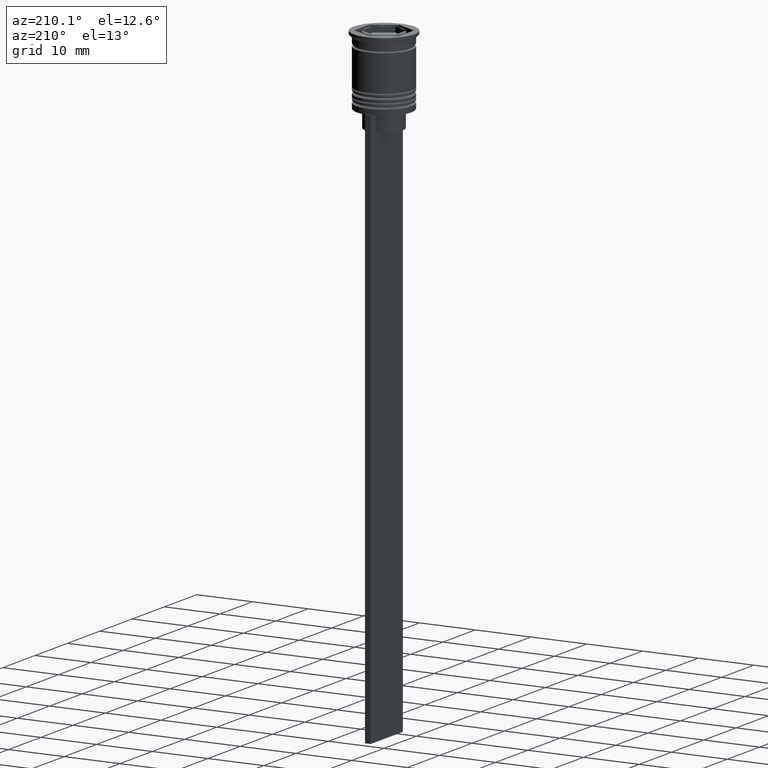
[diagram: clean part render]
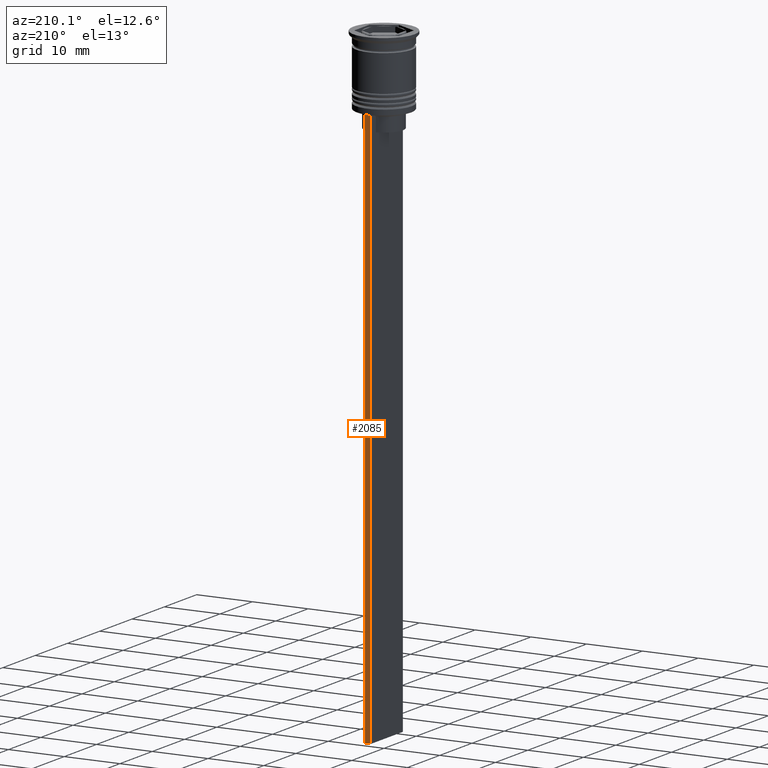
[diagram: same view with one face highlighted and labeled with its STEP entity id]
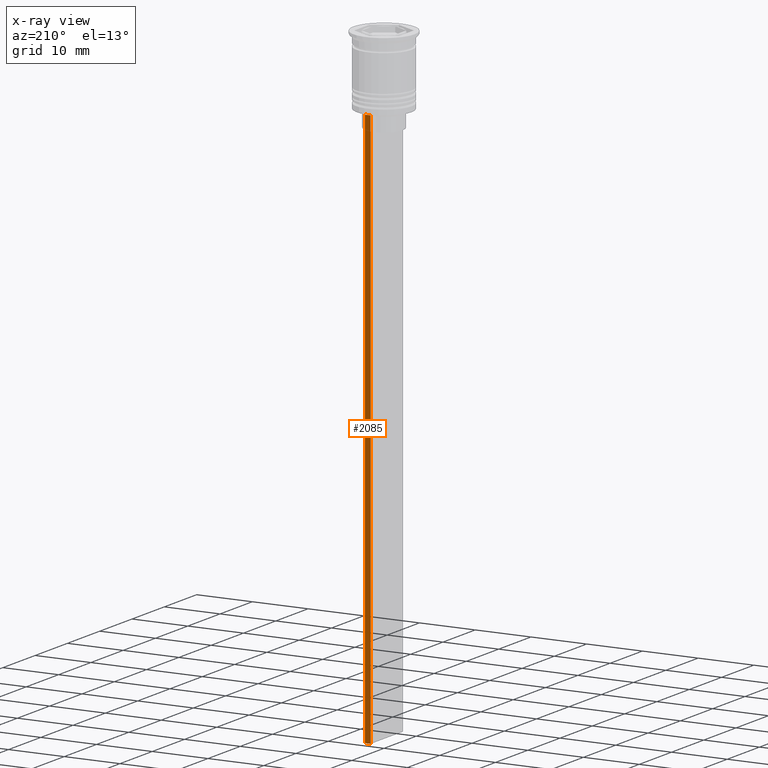
[diagram: x-ray of the same camera — body ghosted, the highlighted face saturated]
A machine part, auxiliary view. The second image highlights one B-rep face of the part: STEP entity #2085.
The next image is the same camera in x-ray: the body ghosted, the highlighted face saturated — about 0% of this face is hidden behind the body in this view.
In plain terms, the highlighted planar face has unit normal (0, -1, -0).
Its self-contained STEP definition (entity closure, byte-faithful):
#122 = CARTESIAN_POINT ( 'NONE',  ( -0.5000000000000000000, 5.000000000000000888, -2.450124378879110054 ) ) ;
#198 = VECTOR ( 'NONE', #2334, 1000.000000000000000 ) ;
#245 = ORIENTED_EDGE ( 'NONE', *, *, #617, .T. ) ;
#392 = VECTOR ( 'NONE', #1901, 1000.000000000000000 ) ;
#517 = DIRECTION ( 'NONE',  ( 0.000000000000000000, -1.000000000000000000, -0.000000000000000000 ) ) ;
#617 = EDGE_CURVE ( 'NONE', #1435, #2125, #2478, .T. ) ;
#720 = CARTESIAN_POINT ( 'NONE',  ( -0.5000000000000000000, 5.000000000000000888, -112.5000000000000000 ) ) ;
#732 = CARTESIAN_POINT ( 'NONE',  ( 0.5000000000000000000, 5.000000000000000888, -112.5000000000000000 ) ) ;
#771 = VERTEX_POINT ( 'NONE', #999 ) ;
#917 = FACE_OUTER_BOUND ( 'NONE', #1704, .T. ) ;
#942 = LINE ( 'NONE', #1748, #943 ) ;
#943 = VECTOR ( 'NONE', #2546, 1000.000000000000000 ) ;
#999 = CARTESIAN_POINT ( 'NONE',  ( 0.5000000000000000000, 5.000000000000000888, -112.5000000000000000 ) ) ;
#1108 = CARTESIAN_POINT ( 'NONE',  ( 0.5000000000000000000, 5.000000000000000888, -12.50000000000000000 ) ) ;
#1115 = DIRECTION ( 'NONE',  ( 0.000000000000000000, 0.000000000000000000, -1.000000000000000000 ) ) ;
#1363 = LINE ( 'NONE', #732, #198 ) ;
#1435 = VERTEX_POINT ( 'NONE', #1494 ) ;
#1494 = CARTESIAN_POINT ( 'NONE',  ( -0.5000000000000000000, 5.000000000000000888, -12.50000000000000000 ) ) ;
#1519 = AXIS2_PLACEMENT_3D ( 'NONE', #2301, #517, #1115 ) ;
#1697 = PLANE ( 'NONE',  #1519 ) ;
#1704 = EDGE_LOOP ( 'NONE', ( #2171, #245, #2242, #2169 ) ) ;
#1748 = CARTESIAN_POINT ( 'NONE',  ( 0.5000000000000000000, 5.000000000000000888, -2.450124378879110054 ) ) ;
#1871 = EDGE_CURVE ( 'NONE', #1435, #1924, #1913, .T. ) ;
#1901 = DIRECTION ( 'NONE',  ( 1.000000000000000000, 0.000000000000000000, 0.000000000000000000 ) ) ;
#1913 = LINE ( 'NONE', #122, #2107 ) ;
#1924 = VERTEX_POINT ( 'NONE', #720 ) ;
#1945 = CARTESIAN_POINT ( 'NONE',  ( 0.5000000000000000000, 5.000000000000000888, -12.50000000000000000 ) ) ;
#2085 = ADVANCED_FACE ( 'NONE', ( #917 ), #1697, .F. ) ;
#2107 = VECTOR ( 'NONE', #2113, 1000.000000000000000 ) ;
#2113 = DIRECTION ( 'NONE',  ( 0.000000000000000000, 0.000000000000000000, -1.000000000000000000 ) ) ;
#2125 = VERTEX_POINT ( 'NONE', #1945 ) ;
#2169 = ORIENTED_EDGE ( 'NONE', *, *, #2574, .T. ) ;
#2171 = ORIENTED_EDGE ( 'NONE', *, *, #1871, .F. ) ;
#2194 = EDGE_CURVE ( 'NONE', #2125, #771, #942, .T. ) ;
#2242 = ORIENTED_EDGE ( 'NONE', *, *, #2194, .T. ) ;
#2301 = CARTESIAN_POINT ( 'NONE',  ( 0.5000000000000000000, 5.000000000000000888, -2.450124378879110054 ) ) ;
#2334 = DIRECTION ( 'NONE',  ( -1.000000000000000000, 0.000000000000000000, 0.000000000000000000 ) ) ;
#2478 = LINE ( 'NONE', #1108, #392 ) ;
#2546 = DIRECTION ( 'NONE',  ( 0.000000000000000000, 0.000000000000000000, -1.000000000000000000 ) ) ;
#2574 = EDGE_CURVE ( 'NONE', #771, #1924, #1363, .T. ) ;